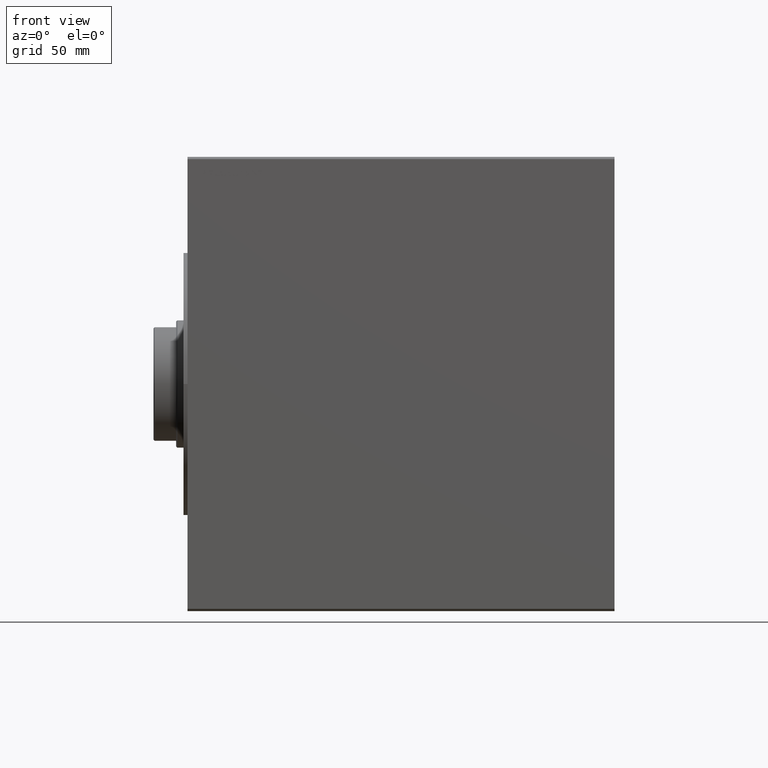
[diagram: clean part render]
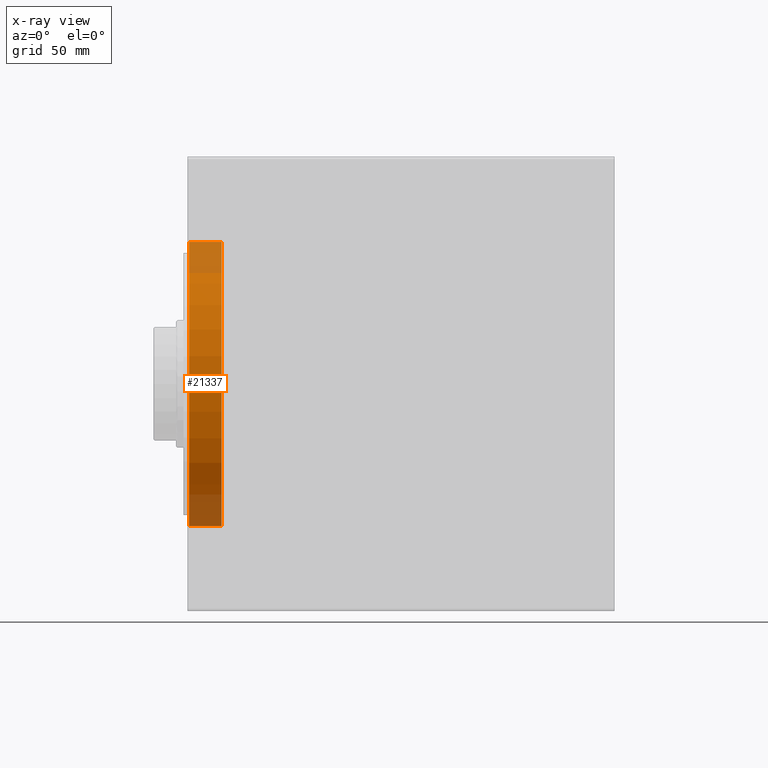
[diagram: x-ray — body ghosted, one internal face saturated and labeled with its STEP entity id]
A machine part, front view, then the same camera in x-ray: the body is ghosted and one INTERNAL B-rep face — a face not visible from any outside direction — is saturated and labeled: STEP entity #21337.
In plain terms, the highlighted cylindrical surface (partial cylindrical patch) has radius 62.5 mm, axis along (-1, -0, -0).
Its self-contained STEP definition (entity closure, byte-faithful):
#1660 = LINE ( 'NONE', #39240, #28291 ) ;
#2619 = DIRECTION ( 'NONE',  ( 0.000000000000000000, 0.000000000000000000, 1.000000000000000000 ) ) ;
#3953 = VERTEX_POINT ( 'NONE', #26367 ) ;
#4201 = EDGE_CURVE ( 'NONE', #40311, #3953, #28752, .T. ) ;
#4995 = DIRECTION ( 'NONE',  ( -1.000000000000000000, -0.000000000000000000, -0.000000000000000000 ) ) ;
#6417 = DIRECTION ( 'NONE',  ( -1.000000000000000000, -0.000000000000000000, -0.000000000000000000 ) ) ;
#6781 = EDGE_CURVE ( 'NONE', #14016, #3953, #42090, .T. ) ;
#7876 = CARTESIAN_POINT ( 'NONE',  ( 15.00000000000000000, 0.000000000000000000, 62.50000000000000000 ) ) ;
#8048 = ORIENTED_EDGE ( 'NONE', *, *, #6781, .T. ) ;
#8653 = VECTOR ( 'NONE', #42339, 1000.000000000000000 ) ;
#9748 = DIRECTION ( 'NONE',  ( 0.000000000000000000, 0.000000000000000000, 1.000000000000000000 ) ) ;
#10147 = AXIS2_PLACEMENT_3D ( 'NONE', #41084, #37737, #17495 ) ;
#10398 = CARTESIAN_POINT ( 'NONE',  ( 15.00000000000000000, 0.000000000000000000, 0.000000000000000000 ) ) ;
#11770 = CARTESIAN_POINT ( 'NONE',  ( 15.00000000000000000, 0.000000000000000000, 62.50000000000000000 ) ) ;
#13301 = CYLINDRICAL_SURFACE ( 'NONE', #26632, 62.50000000000000000 ) ;
#14016 = VERTEX_POINT ( 'NONE', #36991 ) ;
#17495 = DIRECTION ( 'NONE',  ( 0.000000000000000000, 0.000000000000000000, -1.000000000000000000 ) ) ;
#18120 = EDGE_CURVE ( 'NONE', #21109, #40311, #40843, .T. ) ;
#21109 = VERTEX_POINT ( 'NONE', #27130 ) ;
#21337 = ADVANCED_FACE ( 'NONE', ( #36667 ), #13301, .F. ) ;
#22498 = ORIENTED_EDGE ( 'NONE', *, *, #4201, .F. ) ;
#23267 = DIRECTION ( 'NONE',  ( -1.000000000000000000, 0.000000000000000000, 0.000000000000000000 ) ) ;
#26367 = CARTESIAN_POINT ( 'NONE',  ( 0.6999999999999992895, 0.000000000000000000, 62.50000000000000000 ) ) ;
#26632 = AXIS2_PLACEMENT_3D ( 'NONE', #10398, #6417, #9748 ) ;
#27130 = CARTESIAN_POINT ( 'NONE',  ( 15.00000000000000000, 7.654042494670957804E-15, -62.50000000000000000 ) ) ;
#28291 = VECTOR ( 'NONE', #4995, 1000.000000000000000 ) ;
#28752 = LINE ( 'NONE', #7876, #8653 ) ;
#32014 = ORIENTED_EDGE ( 'NONE', *, *, #36371, .T. ) ;
#34083 = ORIENTED_EDGE ( 'NONE', *, *, #18120, .F. ) ;
#36371 = EDGE_CURVE ( 'NONE', #21109, #14016, #1660, .T. ) ;
#36667 = FACE_OUTER_BOUND ( 'NONE', #40638, .T. ) ;
#36991 = CARTESIAN_POINT ( 'NONE',  ( 0.6999999999999992895, 7.654042494670957804E-15, -62.50000000000000000 ) ) ;
#37495 = CARTESIAN_POINT ( 'NONE',  ( 15.00000000000000000, 0.000000000000000000, 0.000000000000000000 ) ) ;
#37737 = DIRECTION ( 'NONE',  ( -1.000000000000000000, 0.000000000000000000, 0.000000000000000000 ) ) ;
#39240 = CARTESIAN_POINT ( 'NONE',  ( 15.00000000000000000, 7.654042494670957804E-15, -62.50000000000000000 ) ) ;
#40311 = VERTEX_POINT ( 'NONE', #11770 ) ;
#40638 = EDGE_LOOP ( 'NONE', ( #34083, #32014, #8048, #22498 ) ) ;
#40843 = CIRCLE ( 'NONE', #42987, 62.50000000000000000 ) ;
#41084 = CARTESIAN_POINT ( 'NONE',  ( 0.6999999999999992895, 0.000000000000000000, 0.000000000000000000 ) ) ;
#42090 = CIRCLE ( 'NONE', #10147, 62.50000000000000000 ) ;
#42339 = DIRECTION ( 'NONE',  ( -1.000000000000000000, -0.000000000000000000, -0.000000000000000000 ) ) ;
#42987 = AXIS2_PLACEMENT_3D ( 'NONE', #37495, #23267, #2619 ) ;